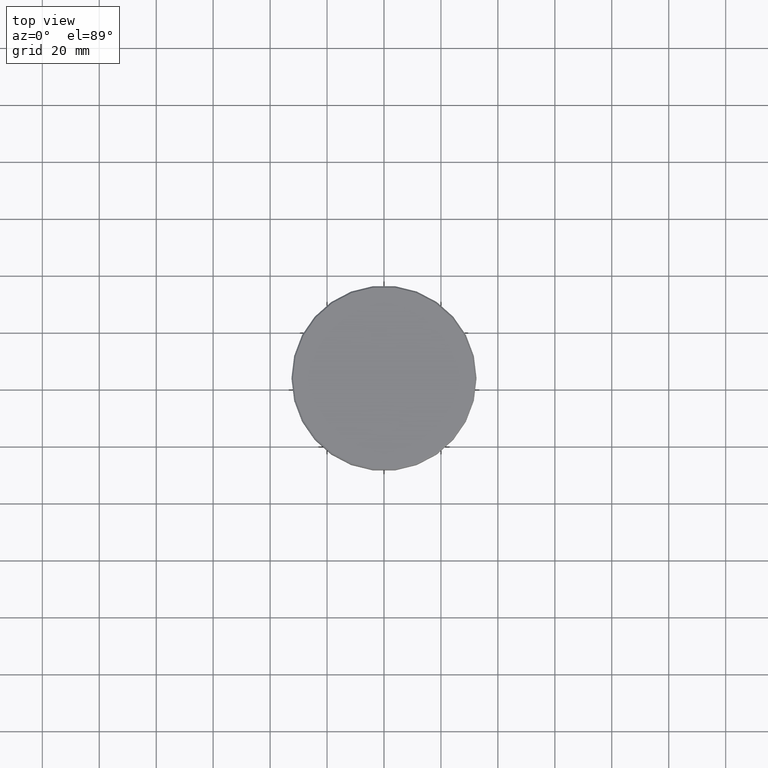
[diagram: clean part render]
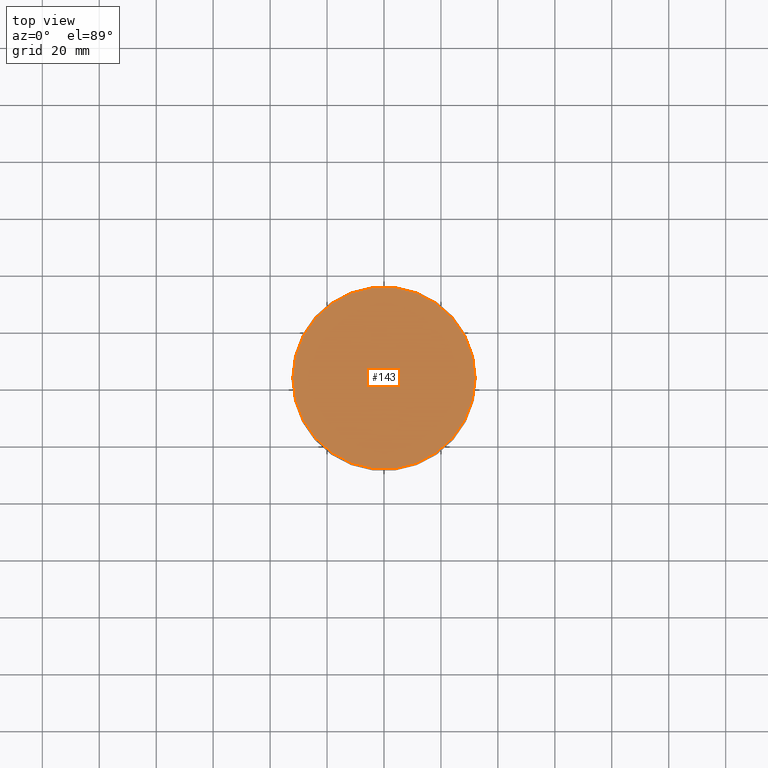
[diagram: same view with one face highlighted and labeled with its STEP entity id]
A machine part, top view. The second image highlights one B-rep face of the part: STEP entity #143.
In plain terms, the highlighted planar face has unit normal (0, -0, 1).
Its self-contained STEP definition (entity closure, byte-faithful):
#13 = DIRECTION ( 'NONE',  ( 1.000000000000000000, 0.000000000000000000, 0.000000000000000000 ) ) ;
#77 = AXIS2_PLACEMENT_3D ( 'NONE', #900, #634, #816 ) ;
#120 = DIRECTION ( 'NONE',  ( 1.000000000000000000, 0.000000000000000000, 0.000000000000000000 ) ) ;
#143 = ADVANCED_FACE ( 'NONE', ( #243 ), #731, .T. ) ;
#176 = VERTEX_POINT ( 'NONE', #443 ) ;
#225 = AXIS2_PLACEMENT_3D ( 'NONE', #238, #1132, #120 ) ;
#226 = ORIENTED_EDGE ( 'NONE', *, *, #1180, .T. ) ;
#238 = CARTESIAN_POINT ( 'NONE',  ( 0.000000000000000000, 0.000000000000000000, 0.000000000000000000 ) ) ;
#243 = FACE_OUTER_BOUND ( 'NONE', #669, .T. ) ;
#323 = ORIENTED_EDGE ( 'NONE', *, *, #829, .T. ) ;
#443 = CARTESIAN_POINT ( 'NONE',  ( -31.99999999999997158, 0.000000000000000000, 0.000000000000000000 ) ) ;
#545 = CARTESIAN_POINT ( 'NONE',  ( 31.99999999999997158, 3.949485927250213261E-15, 0.000000000000000000 ) ) ;
#613 = VERTEX_POINT ( 'NONE', #545 ) ;
#624 = CIRCLE ( 'NONE', #1070, 31.99999999999997158 ) ;
#634 = DIRECTION ( 'NONE',  ( 0.000000000000000000, -0.000000000000000000, 1.000000000000000000 ) ) ;
#669 = EDGE_LOOP ( 'NONE', ( #323, #226 ) ) ;
#731 = PLANE ( 'NONE',  #77 ) ;
#733 = DIRECTION ( 'NONE',  ( -0.000000000000000000, -0.000000000000000000, 1.000000000000000000 ) ) ;
#816 = DIRECTION ( 'NONE',  ( 1.000000000000000000, 0.000000000000000000, 0.000000000000000000 ) ) ;
#823 = CIRCLE ( 'NONE', #225, 31.99999999999997158 ) ;
#829 = EDGE_CURVE ( 'NONE', #176, #613, #823, .T. ) ;
#837 = CARTESIAN_POINT ( 'NONE',  ( 0.000000000000000000, 0.000000000000000000, 0.000000000000000000 ) ) ;
#900 = CARTESIAN_POINT ( 'NONE',  ( 0.000000000000000000, 0.000000000000000000, 0.000000000000000000 ) ) ;
#1070 = AXIS2_PLACEMENT_3D ( 'NONE', #837, #733, #13 ) ;
#1132 = DIRECTION ( 'NONE',  ( -0.000000000000000000, -0.000000000000000000, 1.000000000000000000 ) ) ;
#1180 = EDGE_CURVE ( 'NONE', #613, #176, #624, .T. ) ;